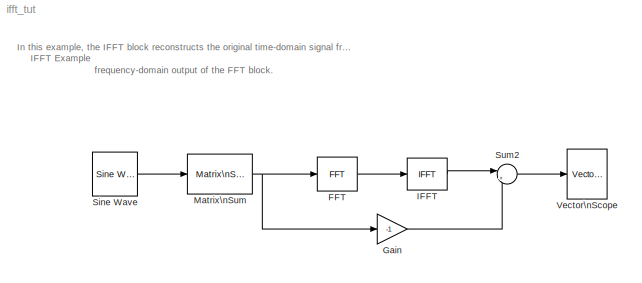
MODEL ifft_tut
KIND model
CONFIG AbsTol = auto
CONFIG FixedStep = auto
CONFIG MaxStep = auto
CONFIG MinStep = auto
CONFIG PostLoadFcn = set_param(gcs,'SimulationCommand','Update')
CONFIG RelTol = 1e-3
CONFIG Solver = FixedStepDiscrete
CONFIG SolverMode = Auto
CONFIG StartTime = 0.0
CONFIG StopTime = inf
BLOCK [Reference] FFT  REF=dspxfrm3/FFT
  BitRevOrder = on
  CompMethod = Table lookup
  Ports = [1, 1]
  SourceBlock = dspxfrm3/FFT
  SourceType = FFT
  TableOpt = Speed
BLOCK [Gain] Gain
  Gain = -1
  Multiplication = Element-wise(K.*u)
  SaturateOnIntegerOverflow = on
BLOCK [Reference] IFFT  REF=dspxfrm3/IFFT
  BitRevOrder = on
  CompMethod = Table lookup
  Ports = [1, 1]
  SkipNorm = off
  SourceBlock = dspxfrm3/IFFT
  SourceType = IFFT
  TableOpt = Speed
  cs_in = on
  mode = Real
BLOCK [Reference] Matrix\nSum  REF=dspmtrx3/Matrix\nSum
  Dim = Rows
  Ports = [1, 1]
  SourceBlock = dspmtrx3/Matrix\nSum
  SourceType = Matrix Sum
BLOCK [Reference] Sine Wave  REF=dspsrcs3/Sine Wave
  Amplitude = 1
  CompMethod = Trigonometric Fcn
  Frequency = [15 40]
  OutComplex = Real
  Phase = 0
  Ports = [0, 1]
  ResetState = Restart at time zero
  SampleMode = Discrete
  SampleTime = 0.001
  SamplesPerFrame = 128
  SourceBlock = dspsrcs3/Sine Wave
  SourceType = Sine Wave
  TableSize = Speed
BLOCK [Sum] Sum2
  IconShape = round
  Inputs = |++
  Ports = [2, 1]
  SaturateOnIntegerOverflow = on
BLOCK [Reference] Vector\nScope  REF=dspsnks3/Vector\nScope
  AxisGrid = on
  AxisLegend = off
  AxisProperties = off
  AxisZoom = off
  DisplayProperties = off
  Domain = Time
  FigPos = get(0,'defaultfigureposition')
  FrameNumber = on
  HorizSpan = 1
  InheritXIncr = on
  LineProperties = off
  Memory = off
  OpenScopeAtSimStart = on
  OpenScopeImmediately = off
  Ports = [1]
  ScopeProperties = on
  SourceBlock = dspsnks3/Vector\nScope
  SourceType = Vector Scope
  XIncr = 1
  XLabel = Samples
  XRange = [0...Fs/2]
  XUnits = Hertz
  YLabel = Amplitude
  YMax = 10
  YMin = -10
  YUnits = dB
LINE FFT:1 -> IFFT:1
LINE Gain:1 -> Sum2:2
LINE IFFT:1 -> Sum2:1
NET Matrix\nSum:1 -> FFT:1, Gain:1
LINE Sine Wave:1 -> Matrix\nSum:1
LINE Sum2:1 -> Vector\nScope:1
note: NET lines group one-source signal fan-out (src -> all destinations, sorted); 1:1 wires keep LINE
